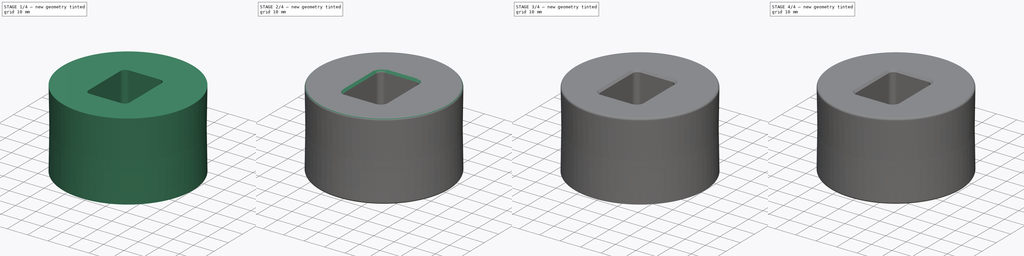
[diagram: build sequence overview — one tinted view per stage of 4, left to right]
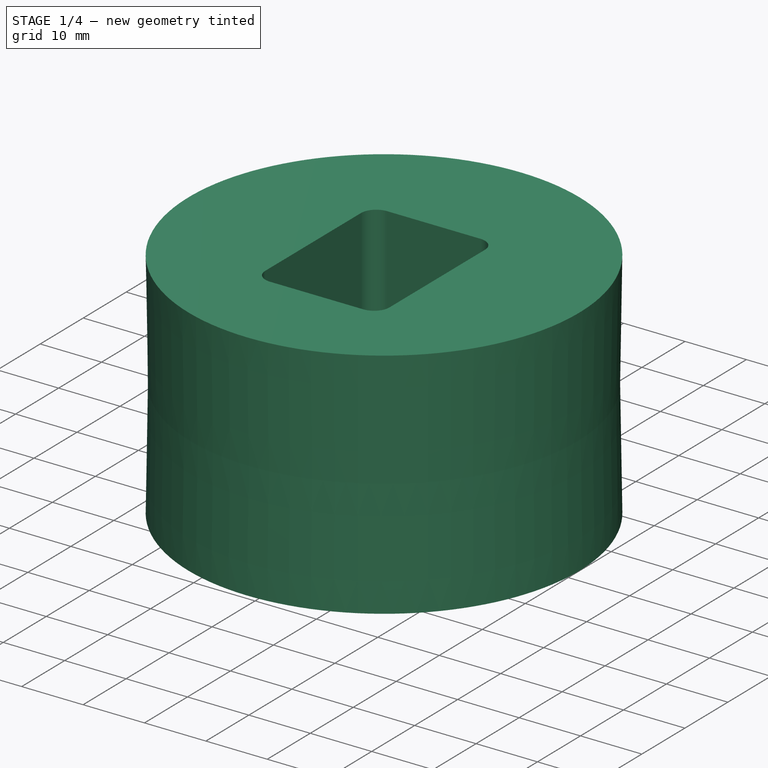
[diagram: stage 1 of 4 — iso view after this stage's code; geometry added in this stage tinted green]
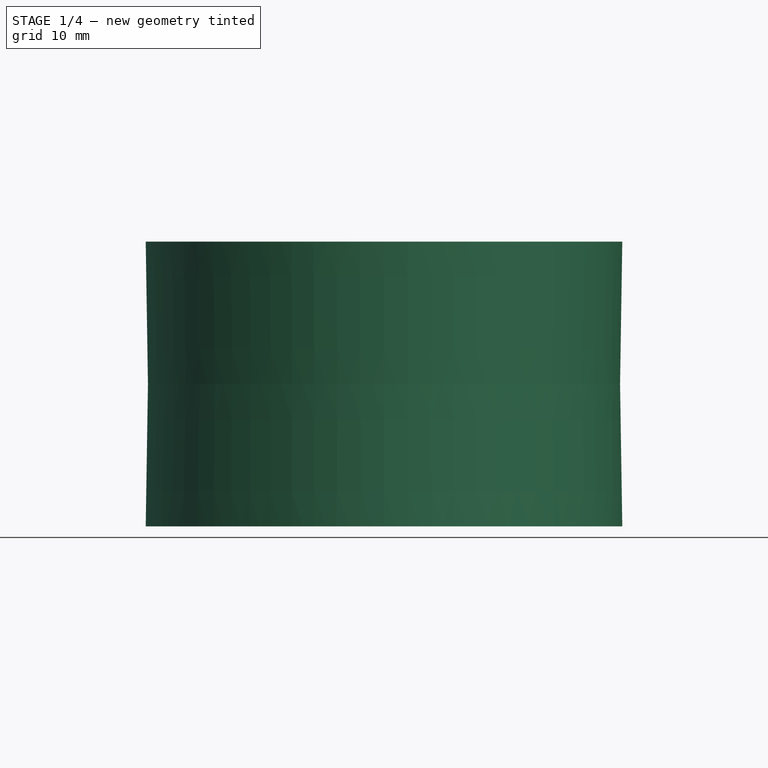
[diagram: stage 1 of 4 — front view after this stage's code; geometry added in this stage tinted green]
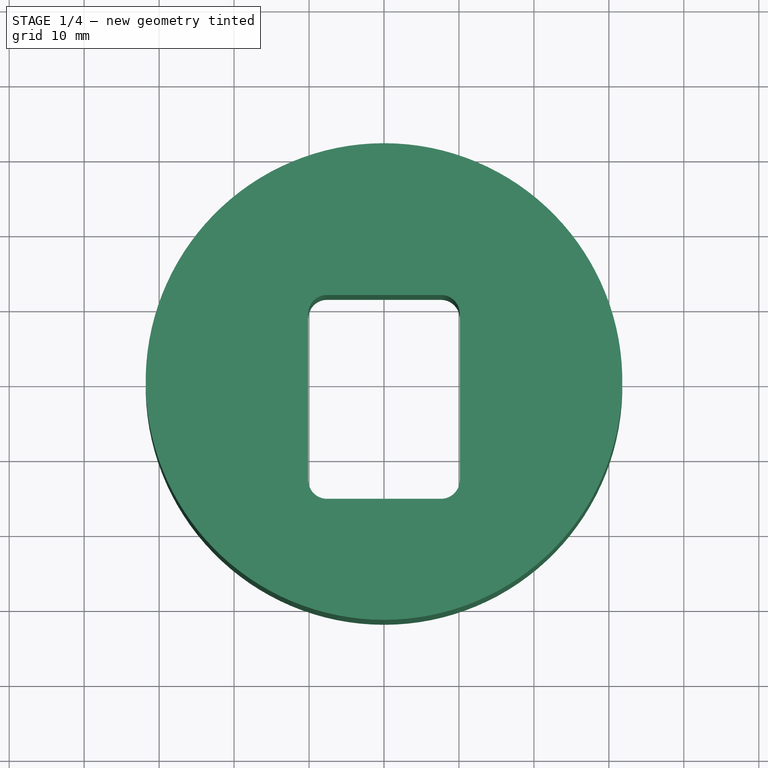
[diagram: stage 1 of 4 — top view after this stage's code; geometry added in this stage tinted green]
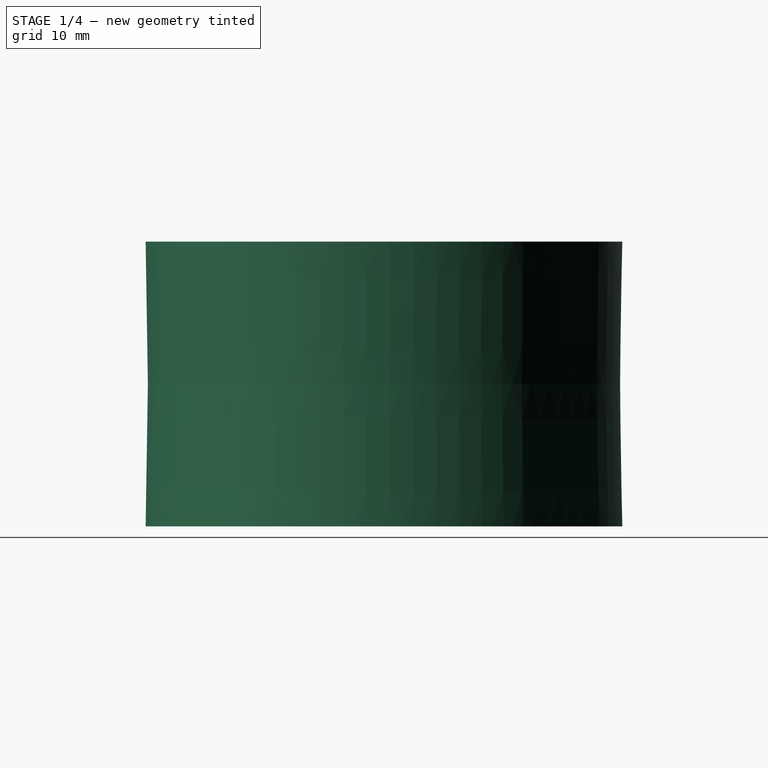
[diagram: stage 1 of 4 — right view after this stage's code; geometry added in this stage tinted green]
FCSTD DOCUMENT  (FreeCAD 1.0R39319 (Git))
Label: Upper_torque_mount
License: All rights reserved
LicenseURL: https://en.wikipedia.org/wiki/All_rights_reserved
objects: Sketcher::SketchObject×6, PartDesign::Chamfer×4, PartDesign::Pad×2, PartDesign::Pocket×2, PartDesign::Groove×2, PartDesign::Body×2, PartDesign::Fillet×2, Spreadsheet::Sheet×1
note: 50 computed .brp shape members not serialized (recipe doc carries the construction recipe); baked Part::Feature solids carry a one-line shape summary decoded from their .brp

FEATURE [PartDesign::Body] Body  label="ABS_bushing"
  AllowCompound = false
  Group = -> [Sketch,Pad,Sketch001,Pocket,Sketch002,Groove,Chamfer,Chamfer001,Chamfer002]
  Origin = -> Origin
  Tip = -> Chamfer002
FEATURE [Spreadsheet::Sheet] Spreadsheet
  cells = A1='outer width; B1(ow)=63.6; C1='ow; A2='inner width; B2(iw)=63; C2='iw; A3='thickness; B3(th)=19; C3='th
FEATURE [Sketcher::SketchObject] Sketch003
  ArcFitTolerance = 1e-06
  AttachmentSupport = -> [XY_Plane001]
  FullyConstrained = true
  MakeInternals = false
  MapMode = 5
  expr: Constraints[1] = Spreadsheet.ow
  sketch-geometry (1):
    g0: Circle CenterX=0 CenterY=0 CenterZ=0 NormalX=0 NormalY=0 NormalZ=1 AngleXU=0 Radius=31.8
  constraints (2):
    c: Coincident(g0,g-1)
    c: Diameter(g0) = 63.6
FEATURE [PartDesign::Pad] Pad001
  Direction = (0,0,1)
  Length = 38
  Length2 = 10
  Profile = -> Sketch003
  ReferenceAxis = -> Sketch003 [N_Axis]
  Refine = true
  Suppressed = false
  Type = 0
  expr: Length = Spreadsheet.th * 2
FEATURE [Sketcher::SketchObject] Sketch004
  ArcFitTolerance = 1e-06
  AttachmentSupport = -> [YZ_Plane001]
  FullyConstrained = true
  MakeInternals = false
  MapMode = 5
  Placement = pos=(0,0,0) rot=(0.57735,0.57735,0.57735;2.0944rad)
  expr: Constraints[5] = Spreadsheet.th * 2 + 0.2
  expr: Constraints[6] = Spreadsheet.ow / 2
  expr: Constraints[7] = Spreadsheet.iw / 2
  sketch-geometry (3):
    g0: LineSegment StartX=-31.8 StartY=-0.1 StartZ=0 EndX=-31.8 EndY=38.1 EndZ=0
    g1: LineSegment StartX=-31.8 StartY=38.1 StartZ=0 EndX=-31.5 EndY=19 EndZ=0
    g2: LineSegment StartX=-31.8 StartY=-0.1 StartZ=0 EndX=-31.5 EndY=19 EndZ=0
  constraints (9):
    c: Vertical(g0)
    c: Coincident(g1,g0)
    c: Coincident(g2,g0)
    c: Coincident(g2,g1)
    c: DistanceY(g0,g-1) = 0.1
    c: DistanceY(g0,g0) = 38.2
    c: DistanceX(g0,g-1) = 31.8
    c: DistanceX(g1,g-1) = 31.5
    c: Equal(g2,g1)
FEATURE [PartDesign::Groove] Groove001
  Angle = 360
  Angle2 = 60
  Axis = (0,0,1)
  Base = (0,0,0)
  BaseFeature = -> Pad001
  Profile = -> Sketch004
  ReferenceAxis = -> Sketch004 [V_Axis]
  Refine = true
  Reversed = true
  Suppressed = false
  Type = 0
FEATURE [Sketcher::SketchObject] Sketch005
  ArcFitTolerance = 1e-06
  AttachmentSupport = -> [Groove001]
  FullyConstrained = true
  MakeInternals = false
  MapMode = 5
  Placement = pos=(0,0,38) rot=(0,0,1;0rad)
  sketch-geometry (15):
    g0: Circle [constr] CenterX=0 CenterY=0 CenterZ=0 NormalX=0 NormalY=0 NormalZ=1 AngleXU=0 Radius=6.15
    g1: LineSegment StartX=-10.1 StartY=9.05 StartZ=0 EndX=-10.1 EndY=-13.15 EndZ=0
    g2: LineSegment StartX=-7.6 StartY=-15.65 StartZ=0 EndX=7.6 EndY=-15.65 EndZ=0
    g3: LineSegment StartX=10.1 StartY=-13.15 StartZ=0 EndX=10.1 EndY=9.05 EndZ=0
    g4: LineSegment StartX=7.6 StartY=11.55 StartZ=0 EndX=-7.6 EndY=11.55 EndZ=0
    g5: ArcOfCircle CenterX=-7.6 CenterY=9.05 CenterZ=0 NormalX=0 NormalY=0 NormalZ=1 AngleXU=0 Radius=2.5 StartAngle=1.5708 EndAngle=3.14159
    g6: GeomPoint [constr] X=-10.1 Y=11.55 Z=0
    g7: ArcOfCircle CenterX=7.6 CenterY=9.05 CenterZ=0 NormalX=0 NormalY=0 NormalZ=1 AngleXU=0 Radius=2.5 StartAngle=-1.066e-13 EndAngle=1.5708
    g8: GeomPoint [constr] X=10.1 Y=11.55 Z=0
    g9: ArcOfCircle CenterX=7.6 CenterY=-13.15 CenterZ=0 NormalX=0 NormalY=0 NormalZ=1 AngleXU=0 Radius=2.5 StartAngle=4.71239 EndAngle=6.28319
    g10: GeomPoint [constr] X=10.1 Y=-15.65 Z=0
    g11: ArcOfCircle CenterX=-7.6 CenterY=-13.15 CenterZ=0 NormalX=0 NormalY=0 NormalZ=1 AngleXU=0 Radius=2.5 StartAngle=3.14159 EndAngle=4.71239
    g12: GeomPoint [constr] X=-10.1 Y=-15.65 Z=0
    g13: GeomPoint X=0 Y=11.55 Z=0
    g14: LineSegment [constr] StartX=0 StartY=6.15 StartZ=0 EndX=0 EndY=11.55 EndZ=0
  constraints (34):
    c: Coincident(g0,g-1)
    c: Vertical(g1)
    c: Vertical(g3)
    c: Horizontal(g2)
    c: Horizontal(g4)
    c: PointOnObject(g6,g1)
    c: PointOnObject(g6,g4)
    c: Tangent(g1,g5) = -1.5708
    c: Tangent(g4,g5) = -1.5708
    c: PointOnObject(g8,g3)
    c: PointOnObject(g8,g4)
    c: Tangent(g3,g7) = -1.5708
    c: Tangent(g4,g7) = -1.5708
    c: PointOnObject(g10,g2)
    c: PointOnObject(g10,g3)
    c: Tangent(g2,g9) = -1.5708
    c: Tangent(g3,g9) = -1.5708
    c: PointOnObject(g12,g1)
    c: PointOnObject(g12,g2)
    c: Tangent(g1,g11) = -1.5708
    c: Tangent(g2,g11) = -1.5708
    c: Equal(g5,g11)
    c: Equal(g11,g9)
    c: Equal(g9,g7)
    c: DistanceX(g6,g8) = 20.2
    c: DistanceY(g10,g8) = 27.2
    c: Symmetric(g4,g4,g13)
    c: PointOnObject(g13,g-2)
    c: PointOnObject(g14,g0)
    c: Perpendicular(g0,g14)
    c: Coincident(g14,g13)
    c: DistanceY(g14,g14) = 5.4
    c: Diameter(g0) = 12.3
    c: Radius(g5) = 2.5
FEATURE [PartDesign::Pocket] Pocket001
  BaseFeature = -> Groove001
  Direction = (0,0,-1)
  Length = 60
  Length2 = 5
  Profile = -> Sketch005
  ReferenceAxis = -> Sketch005 [N_Axis]
  Refine = true
  Suppressed = false
  Type = 0
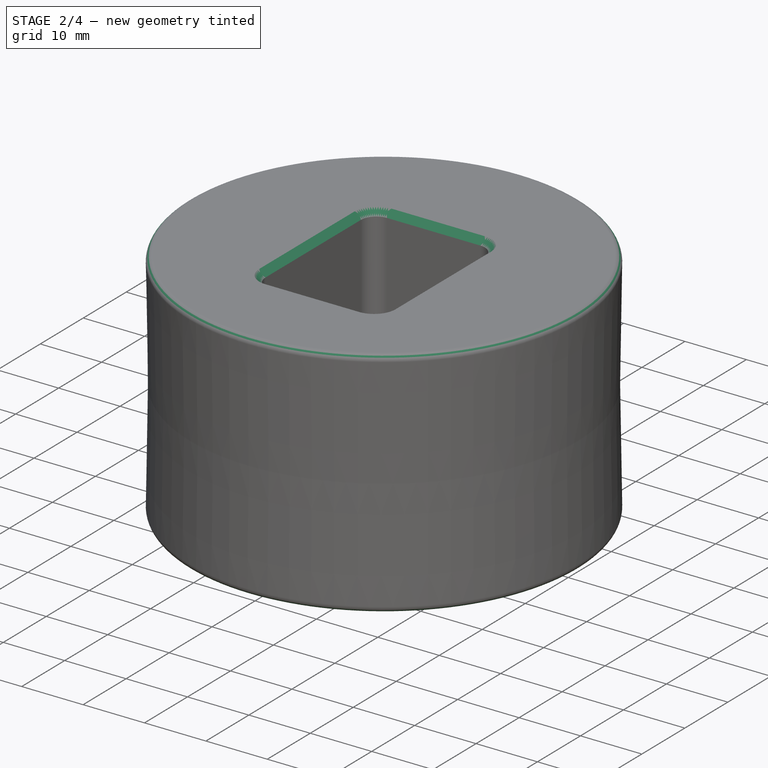
[diagram: stage 2 of 4 — iso view after this stage's code; geometry added in this stage tinted green]
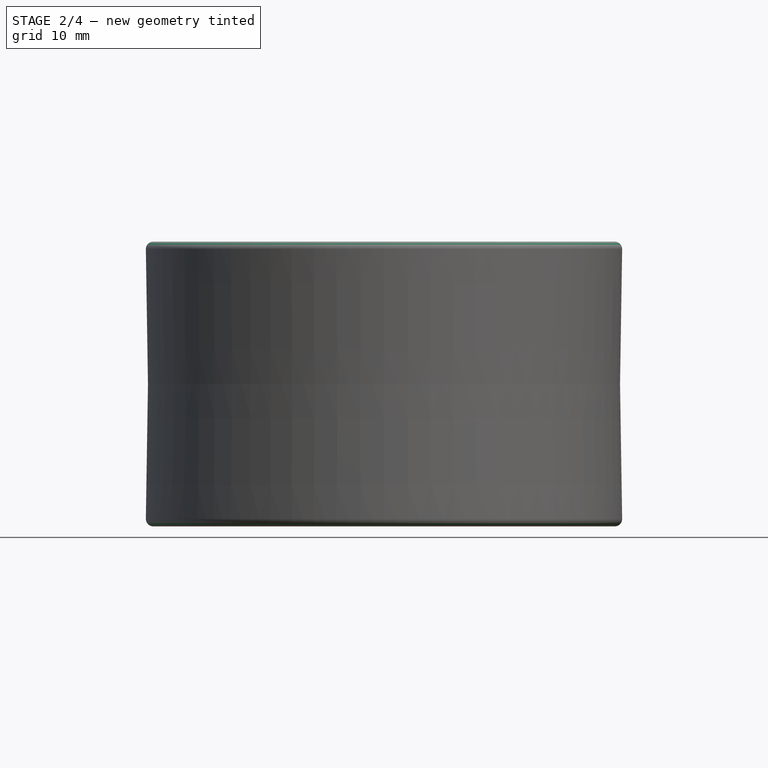
[diagram: stage 2 of 4 — front view after this stage's code; geometry added in this stage tinted green]
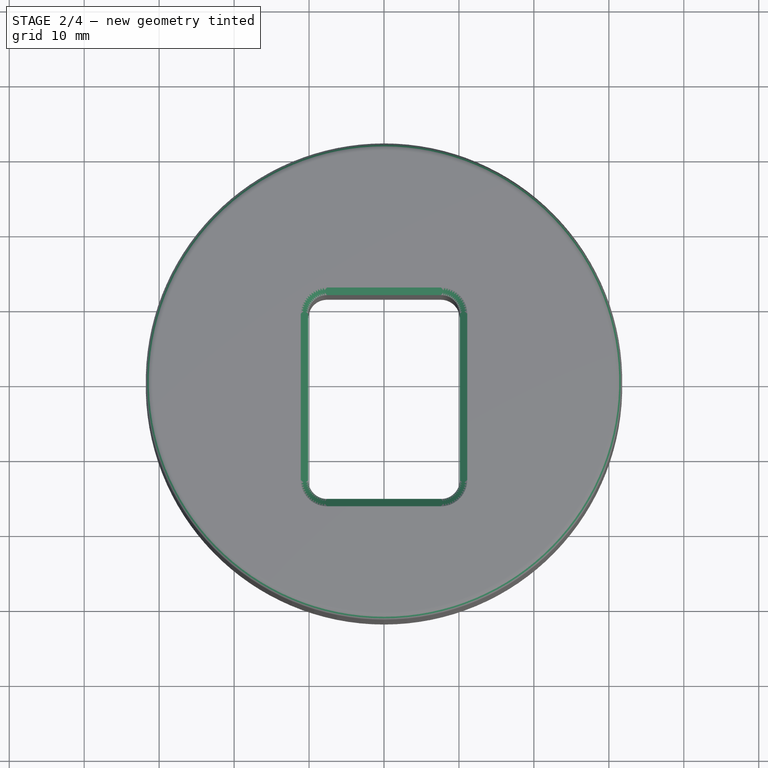
[diagram: stage 2 of 4 — top view after this stage's code; geometry added in this stage tinted green]
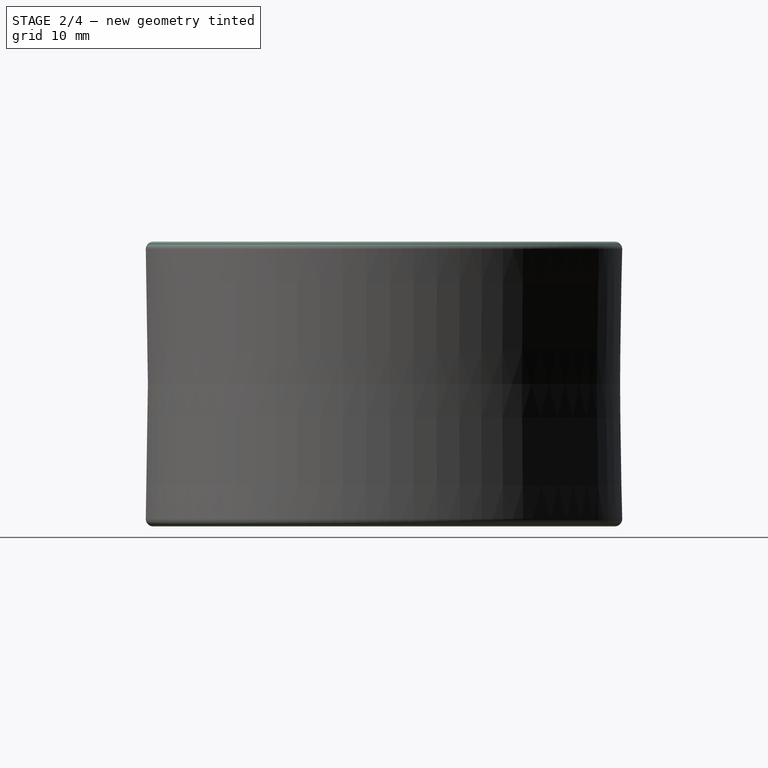
[diagram: stage 2 of 4 — right view after this stage's code; geometry added in this stage tinted green]
FEATURE [PartDesign::Chamfer] Chamfer003
  Angle = 45
  Base = -> Pocket001 [Edge12,Edge6]
  BaseFeature = -> Pocket001
  ChamferType = 0
  FlipDirection = false
  Refine = true
  Size = 1
  Size2 = 1
  SupportTransform = false
  Suppressed = false
  UseAllEdges = false
FEATURE [PartDesign::Fillet] Fillet
  Base = -> Chamfer003 [Edge44]
  BaseFeature = -> Chamfer003
  Radius = 1
  Refine = true
  SupportTransform = false
  Suppressed = false
  UseAllEdges = false
FEATURE [PartDesign::Fillet] Fillet001
  Base = -> Fillet [Edge6]
  BaseFeature = -> Fillet
  Radius = 1
  Refine = true
  SupportTransform = false
  Suppressed = false
  UseAllEdges = false
FEATURE [PartDesign::Body] Body001  label="TPU_bushing"
  AllowCompound = false
  Group = -> [Sketch003,Pad001,Sketch004,Groove001,Sketch005,Pocket001,Chamfer003,Fillet,Fillet001]
  Origin = -> Origin001
  Placement = pos=(0,89.2,0) rot=(0,0,1;0rad)
  Tip = -> Fillet001
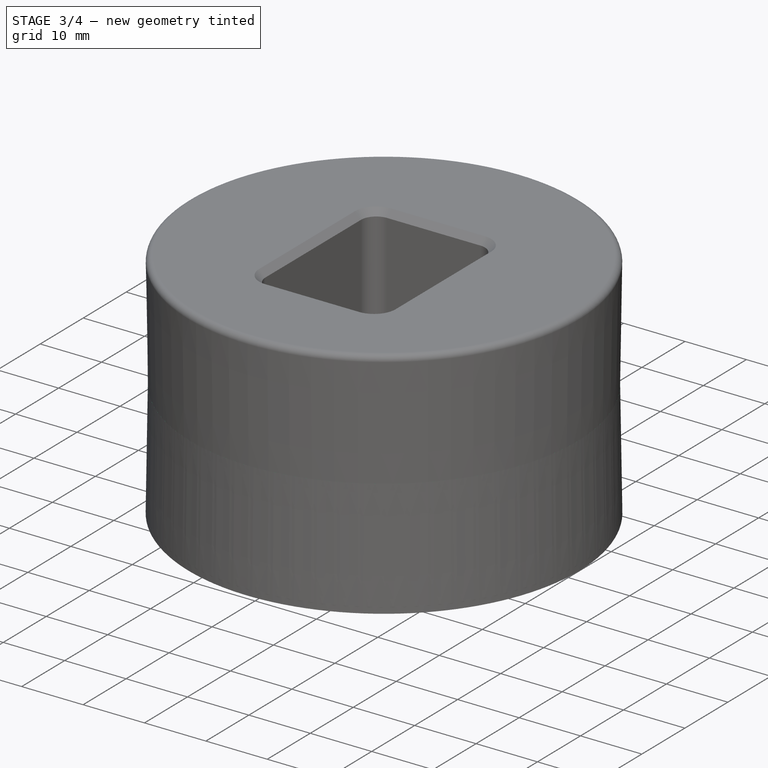
[diagram: stage 3 of 4 — iso view after this stage's code; geometry added in this stage tinted green]
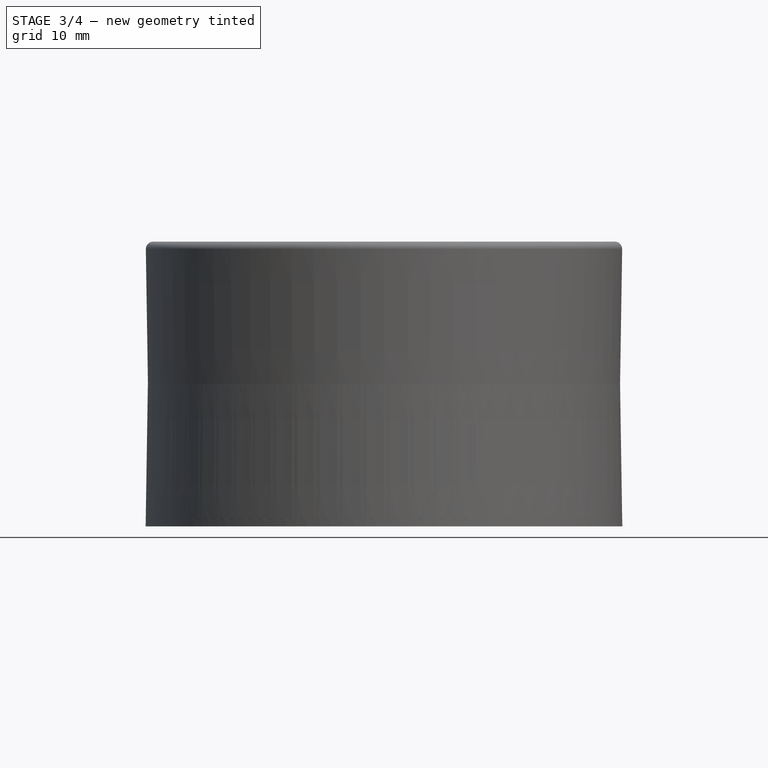
[diagram: stage 3 of 4 — front view after this stage's code; geometry added in this stage tinted green]
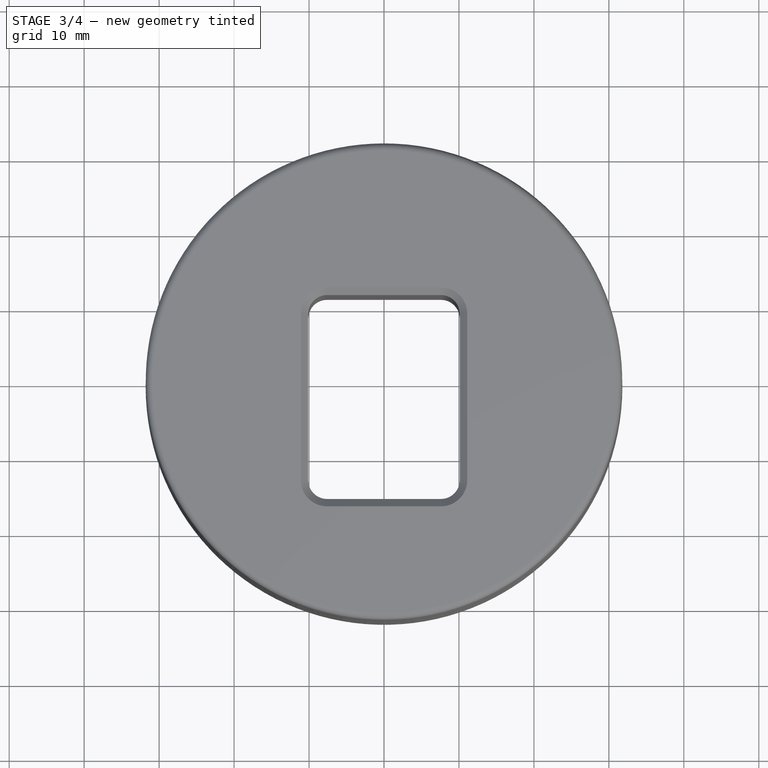
[diagram: stage 3 of 4 — top view after this stage's code; geometry added in this stage tinted green]
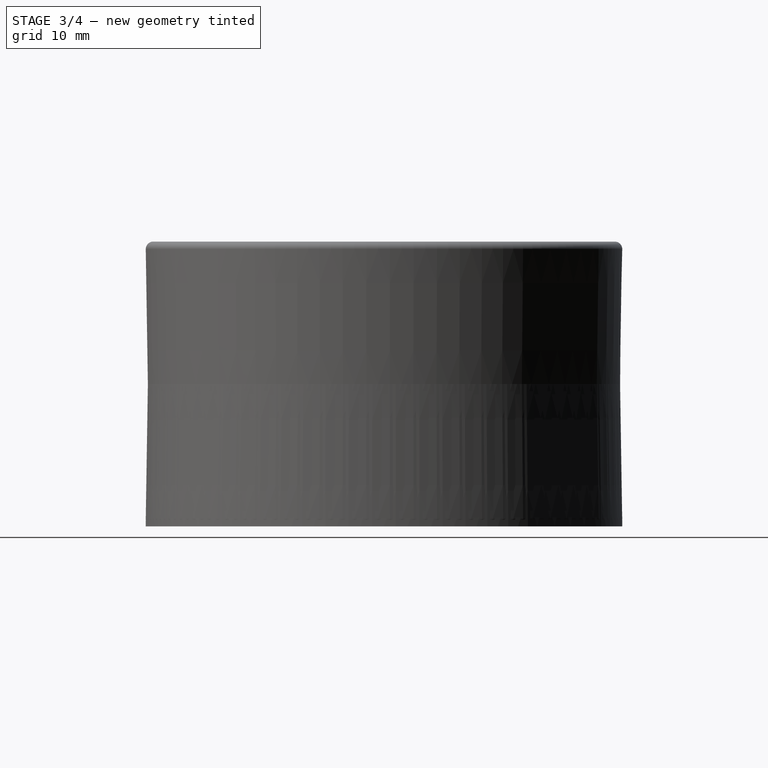
[diagram: stage 3 of 4 — right view after this stage's code; geometry added in this stage tinted green]
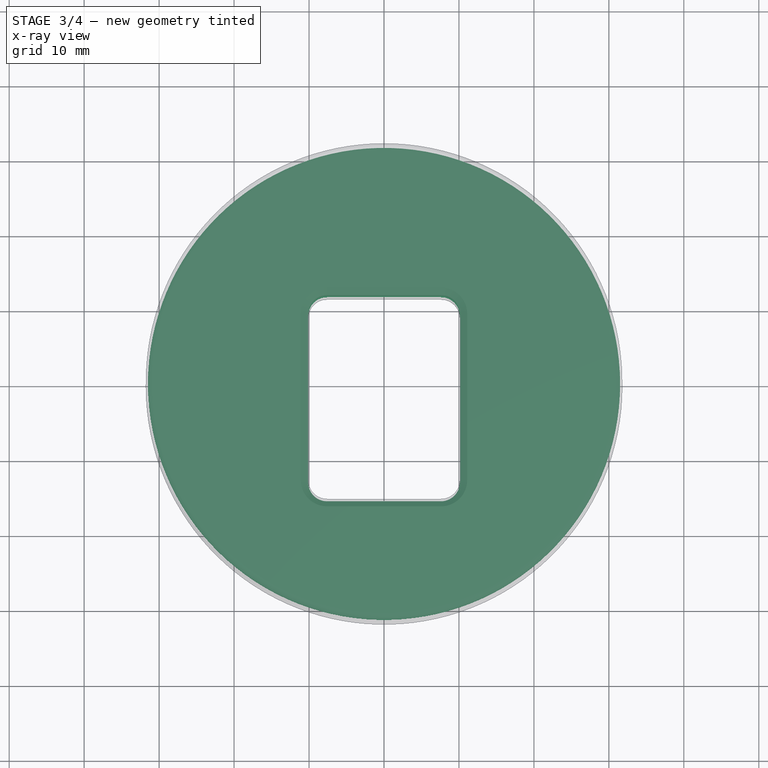
[diagram: stage 3 of 4 — x-ray composite at the top view; earlier geometry ghosted, this stage's added geometry solid]
FEATURE [Sketcher::SketchObject] Sketch
  ArcFitTolerance = 1e-06
  AttachmentSupport = -> [XY_Plane]
  FullyConstrained = true
  MakeInternals = false
  MapMode = 5
  expr: Constraints[1] = Spreadsheet.ow
  sketch-geometry (1):
    g0: Circle CenterX=0 CenterY=0 CenterZ=0 NormalX=0 NormalY=0 NormalZ=1 AngleXU=0 Radius=31.8
  constraints (2):
    c: Coincident(g0,g-1)
    c: Diameter(g0) = 63.6
FEATURE [PartDesign::Pad] Pad
  Direction = (0,0,1)
  Length = 19
  Length2 = 10
  Profile = -> Sketch
  ReferenceAxis = -> Sketch [N_Axis]
  Refine = true
  Suppressed = false
  Type = 0
  expr: Length = Spreadsheet.th
FEATURE [Sketcher::SketchObject] Sketch001
  ArcFitTolerance = 1e-06
  AttachmentSupport = -> [Pad]
  FullyConstrained = true
  MakeInternals = false
  MapMode = 5
  Placement = pos=(0,0,19) rot=(0,0,1;0rad)
  sketch-geometry (15):
    g0: Circle [constr] CenterX=0 CenterY=0 CenterZ=0 NormalX=0 NormalY=0 NormalZ=1 AngleXU=0 Radius=6.15
    g1: LineSegment StartX=-10.1 StartY=9.05 StartZ=0 EndX=-10.1 EndY=-13.15 EndZ=0
    g2: LineSegment StartX=-7.6 StartY=-15.65 StartZ=0 EndX=7.6 EndY=-15.65 EndZ=0
    g3: LineSegment StartX=10.1 StartY=-13.15 StartZ=0 EndX=10.1 EndY=9.05 EndZ=0
    g4: LineSegment StartX=7.6 StartY=11.55 StartZ=0 EndX=-7.6 EndY=11.55 EndZ=0
    g5: GeomPoint X=0 Y=11.55 Z=0
    g6: ArcOfCircle CenterX=-7.6 CenterY=9.05 CenterZ=0 NormalX=0 NormalY=0 NormalZ=1 AngleXU=0 Radius=2.5 StartAngle=1.5708 EndAngle=3.14159
    g7: GeomPoint [constr] X=-10.1 Y=11.55 Z=0
    g8: ArcOfCircle CenterX=7.6 CenterY=9.05 CenterZ=0 NormalX=0 NormalY=0 NormalZ=1 AngleXU=0 Radius=2.5 StartAngle=-2.105e-13 EndAngle=1.5708
    g9: GeomPoint [constr] X=10.1 Y=11.55 Z=0
    g10: ArcOfCircle CenterX=7.6 CenterY=-13.15 CenterZ=0 NormalX=0 NormalY=0 NormalZ=1 AngleXU=0 Radius=2.5 StartAngle=4.71239 EndAngle=6.28319
    g11: GeomPoint [constr] X=10.1 Y=-15.65 Z=0
    g12: ArcOfCircle CenterX=-7.6 CenterY=-13.15 CenterZ=0 NormalX=0 NormalY=0 NormalZ=1 AngleXU=0 Radius=2.5 StartAngle=3.14159 EndAngle=4.71239
    g13: GeomPoint [constr] X=-10.1 Y=-15.65 Z=0
    g14: LineSegment [constr] StartX=0 StartY=6.15 StartZ=0 EndX=0 EndY=11.55 EndZ=0
  constraints (35):
    c: Coincident(g0,g-1)
    c: Diameter(g0) = 12.3
    c: Vertical(g1)
    c: Vertical(g3)
    c: Horizontal(g2)
    c: Horizontal(g4)
    c: Symmetric(g9,g7,g5)
    c: PointOnObject(g5,g-2)
    c: DistanceX(g7,g9) = 20.2
    c: DistanceY(g11,g9) = 27.2
    c: PointOnObject(g7,g1)
    c: PointOnObject(g7,g4)
    c: Tangent(g1,g6) = -1.5708
    c: Tangent(g4,g6) = -1.5708
    c: PointOnObject(g9,g3)
    c: PointOnObject(g9,g4)
    c: Tangent(g3,g8) = -1.5708
    c: Tangent(g4,g8) = -1.5708
    c: PointOnObject(g11,g2)
    c: PointOnObject(g11,g3)
    c: Tangent(g2,g10) = -1.5708
    c: Tangent(g3,g10) = -1.5708
    c: PointOnObject(g13,g1)
    c: PointOnObject(g13,g2)
    c: Tangent(g1,g12) = -1.5708
    c: Tangent(g2,g12) = -1.5708
    c: Equal(g12,g6)
    c: Equal(g6,g8)
    c: Equal(g8,g10)
    c: PointOnObject(g14,g0)
    c: PointOnObject(g14,g4)
    c: Perpendicular(g0,g14)
    c: Vertical(g14)
    c: DistanceY(g14,g14) = 5.4
    c: Radius(g6) = 2.5
FEATURE [PartDesign::Pocket] Pocket
  BaseFeature = -> Pad
  Direction = (0,0,-1)
  Length = 30
  Length2 = 5
  Profile = -> Sketch001
  ReferenceAxis = -> Sketch001 [N_Axis]
  Refine = true
  Suppressed = false
  Type = 0
FEATURE [Sketcher::SketchObject] Sketch002
  ArcFitTolerance = 1e-06
  AttachmentSupport = -> [XZ_Plane]
  FullyConstrained = true
  MakeInternals = false
  MapMode = 5
  Placement = pos=(0,0,0) rot=(1,0,0;1.5708rad)
  expr: Constraints[5] = Spreadsheet.th + 0.2
  expr: Constraints[6] = Spreadsheet.ow / 2
  expr: Constraints[7] = Spreadsheet.iw / 2
  sketch-geometry (3):
    g0: LineSegment StartX=-31.8 StartY=-0.1 StartZ=0 EndX=-31.8 EndY=19.1 EndZ=0
    g1: LineSegment StartX=-31.8 StartY=19.1 StartZ=0 EndX=-31.5 EndY=19.1 EndZ=0
    g2: LineSegment StartX=-31.5 StartY=19.1 StartZ=0 EndX=-31.8 EndY=-0.1 EndZ=0
  constraints (9):
    c: Vertical(g0)
    c: Coincident(g1,g0)
    c: Horizontal(g1)
    c: Coincident(g2,g1)
    c: Coincident(g2,g0)
    c: DistanceY(g0,g0) = 19.2
    c: DistanceX(g0,g-1) = 31.8
    c: DistanceX(g1,g-1) = 31.5
    c: DistanceY(g0,g-1) = 0.1
FEATURE [PartDesign::Groove] Groove
  Angle = 360
  Angle2 = 60
  Axis = (0,2e-16,1)
  Base = (0,0,0)
  BaseFeature = -> Pocket
  Profile = -> Sketch002
  ReferenceAxis = -> Sketch002 [V_Axis]
  Refine = true
  Reversed = true
  Suppressed = false
  Type = 0
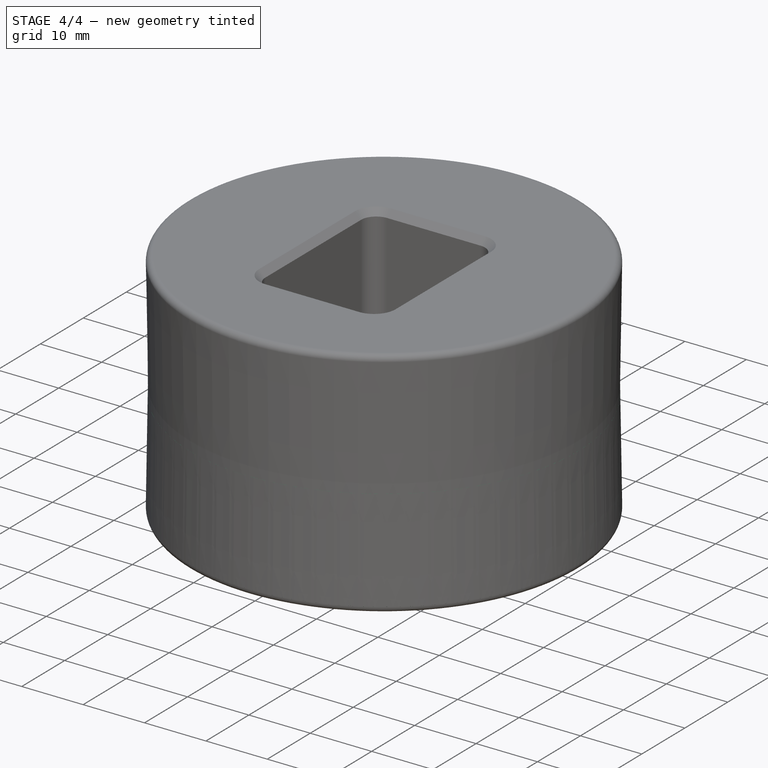
[diagram: stage 4 of 4 — iso view after this stage's code; geometry added in this stage tinted green]
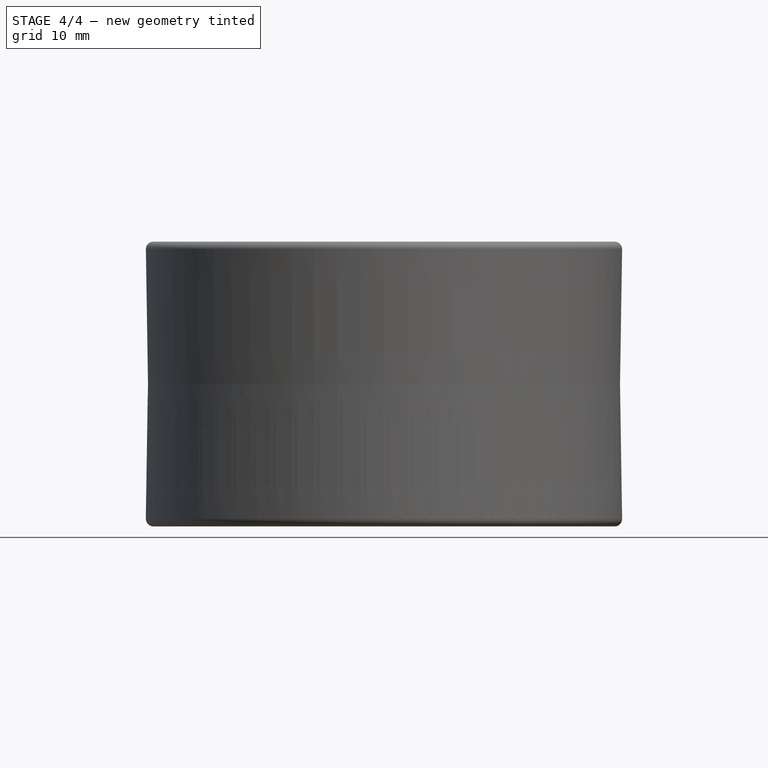
[diagram: stage 4 of 4 — front view after this stage's code; geometry added in this stage tinted green]
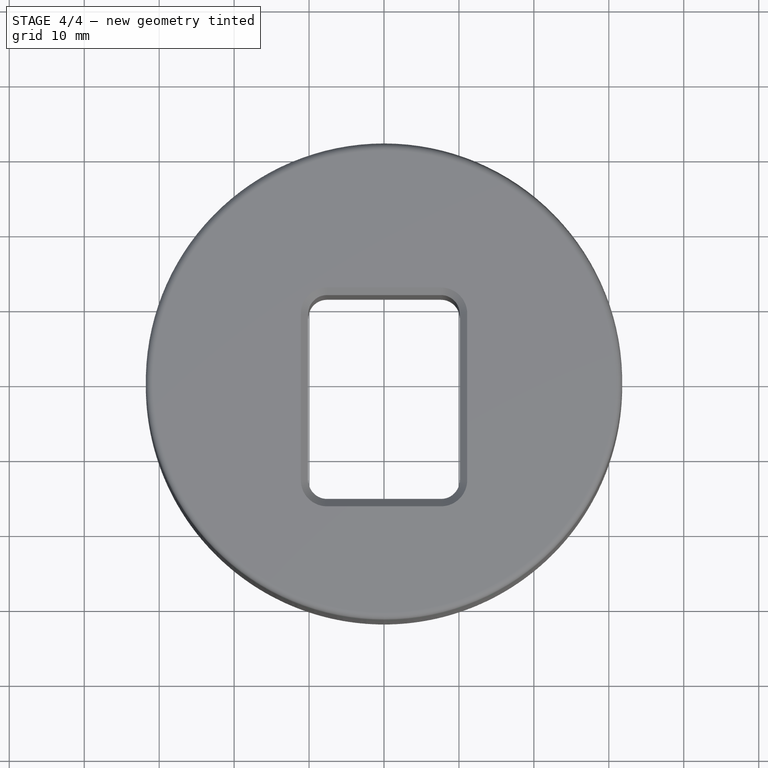
[diagram: stage 4 of 4 — top view after this stage's code; geometry added in this stage tinted green]
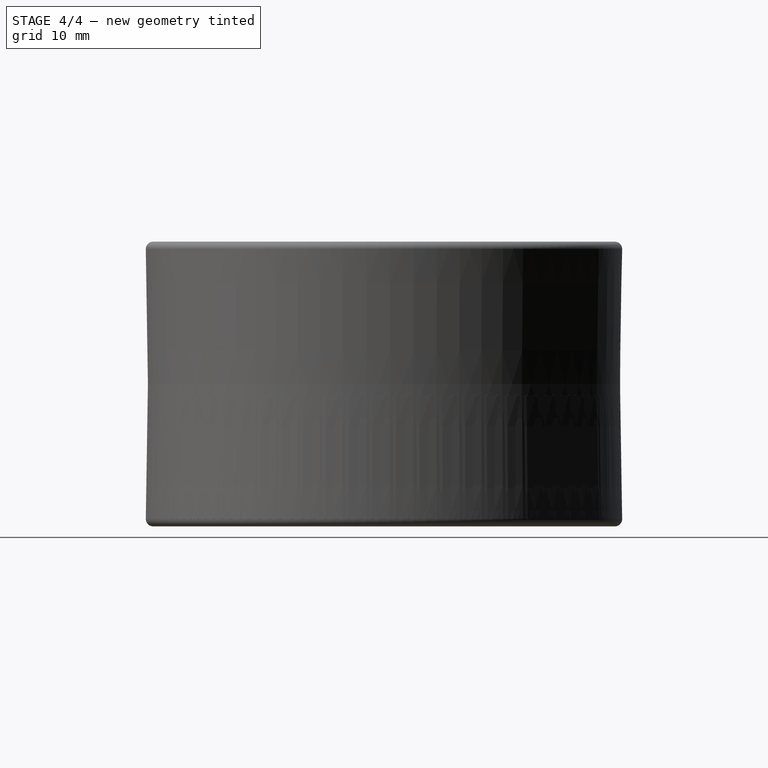
[diagram: stage 4 of 4 — right view after this stage's code; geometry added in this stage tinted green]
FEATURE [PartDesign::Chamfer] Chamfer
  Angle = 45
  Base = -> Groove [Edge21,Edge5]
  BaseFeature = -> Groove
  ChamferType = 0
  FlipDirection = false
  Refine = true
  Size = 1
  Size2 = 1
  SupportTransform = false
  Suppressed = false
  UseAllEdges = false
FEATURE [PartDesign::Chamfer] Chamfer001
  Angle = 45
  Base = -> Chamfer [Edge26]
  BaseFeature = -> Chamfer
  ChamferType = 0
  FlipDirection = false
  Refine = true
  Size = 1.5
  Size2 = 1
  SupportTransform = false
  Suppressed = false
  UseAllEdges = false
FEATURE [PartDesign::Chamfer] Chamfer002
  Angle = 45
  Base = -> Chamfer001 [Edge3]
  BaseFeature = -> Chamfer001
  ChamferType = 0
  FlipDirection = false
  Refine = true
  Size = 1
  Size2 = 1
  SupportTransform = false
  Suppressed = false
  UseAllEdges = false
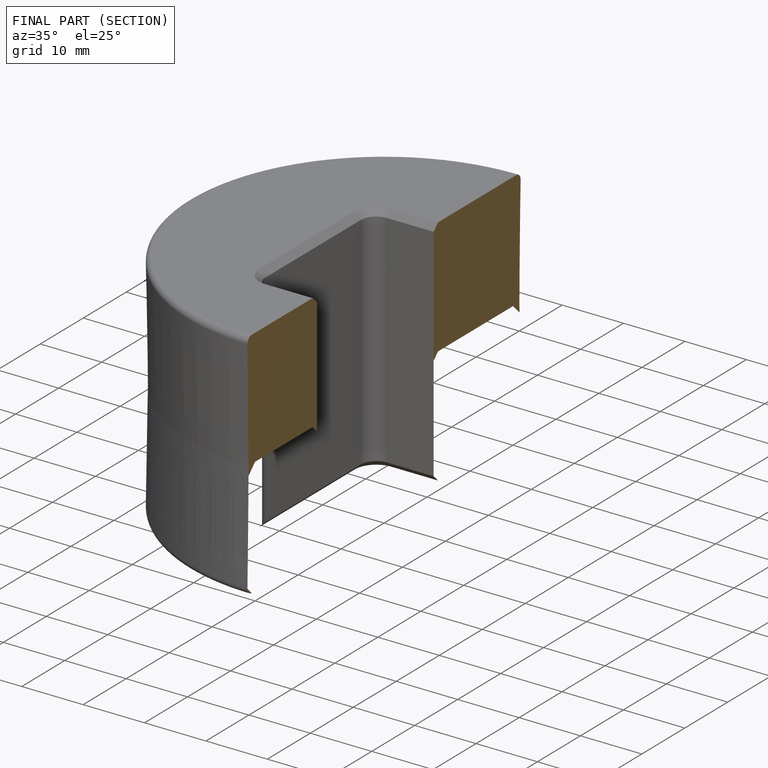
[diagram: finished part — half-section view (interior)]
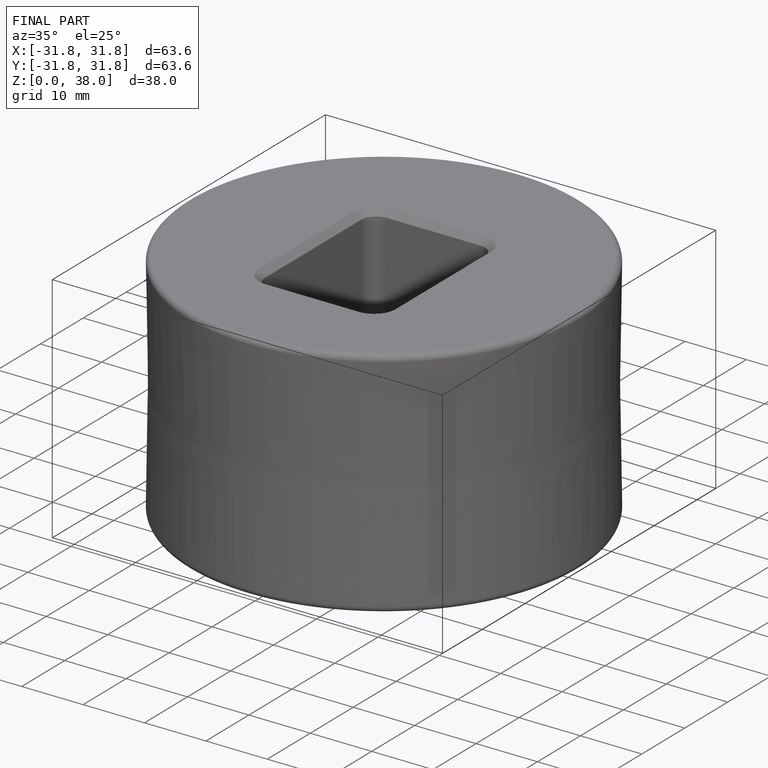
[diagram: finished part — iso view with bounding-box wireframe]
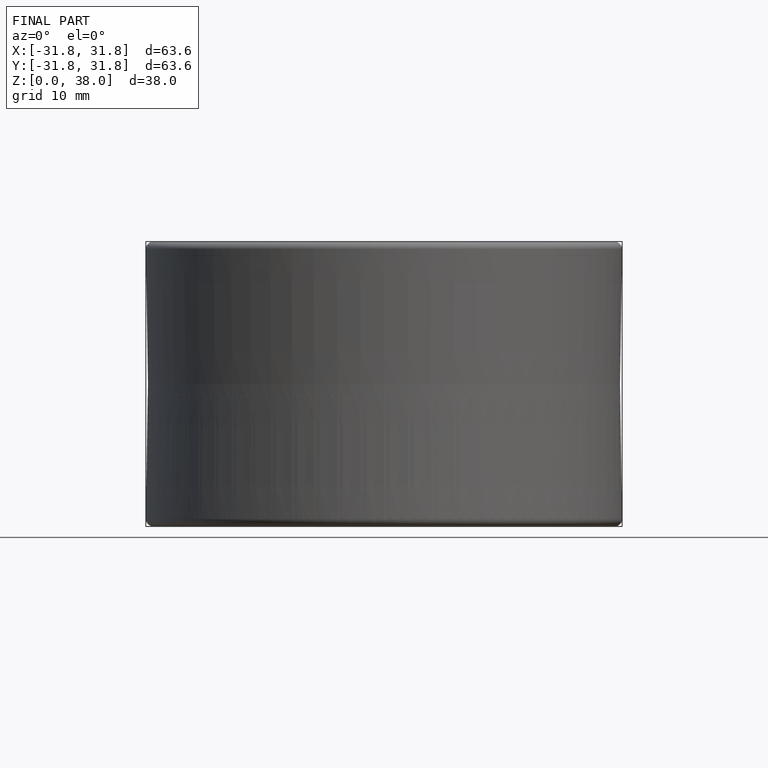
[diagram: finished part — front view with bounding-box wireframe]
